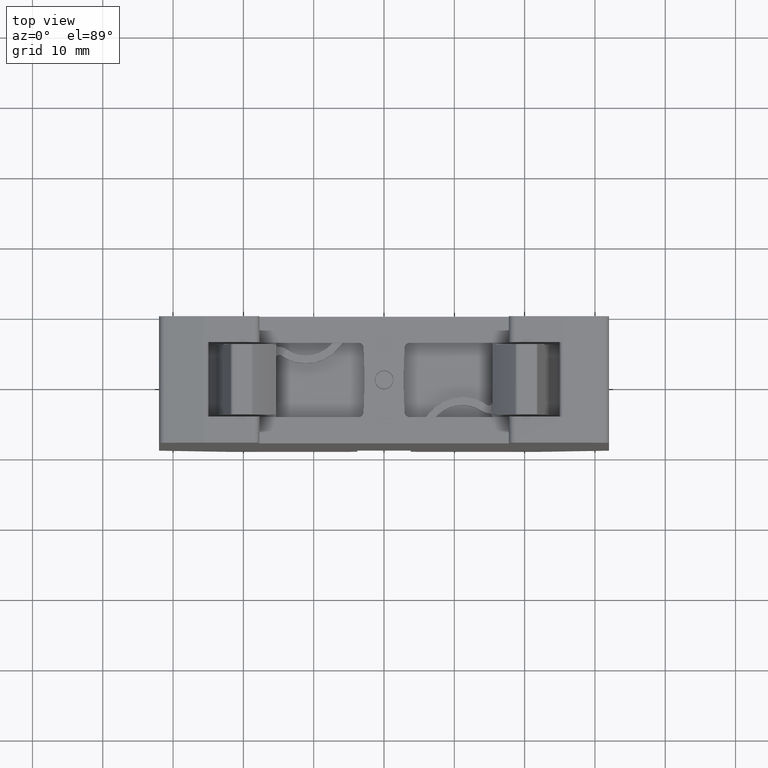
[diagram: clean part render]
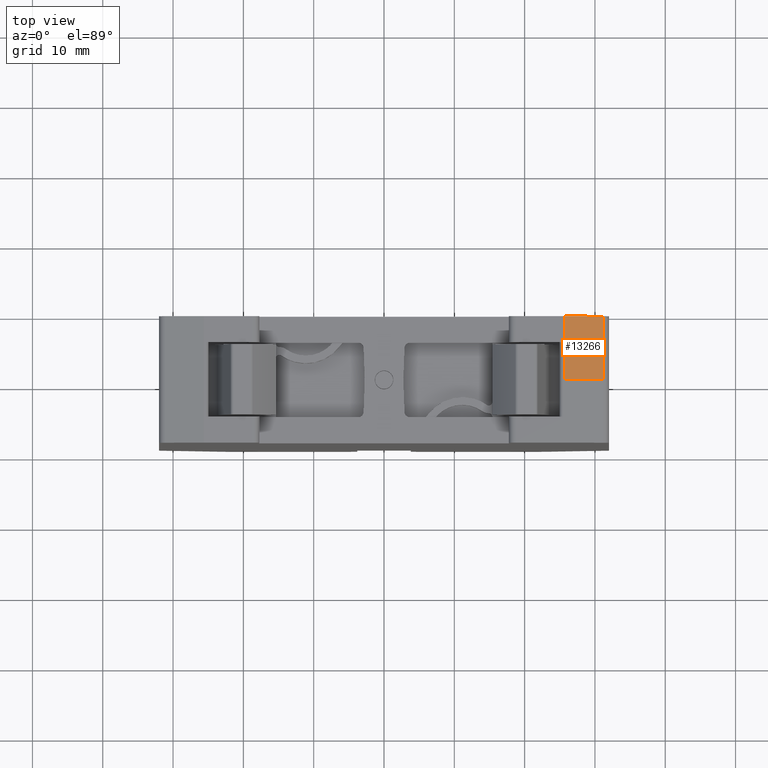
[diagram: same view with one face highlighted and labeled with its STEP entity id]
A machine part, top view. The second image highlights one B-rep face of the part: STEP entity #13266.
In plain terms, the highlighted planar face has unit normal (-0.1479, 0, -0.989).
Its self-contained STEP definition (entity closure, byte-faithful):
#579 = ORIENTED_EDGE ( 'NONE', *, *, #13400, .F. ) ;
#614 = ORIENTED_EDGE ( 'NONE', *, *, #13390, .F. ) ;
#617 = ORIENTED_EDGE ( 'NONE', *, *, #13102, .F. ) ;
#635 = ORIENTED_EDGE ( 'NONE', *, *, #13149, .T. ) ;
#4994 = LINE ( 'NONE', #4997, #15816 ) ;
#4997 = CARTESIAN_POINT ( 'NONE',  ( 125.6854684679427800, 50.07460764096342800, 74.98465249973236300 ) ) ;
#5064 = DIRECTION ( 'NONE',  ( 2.525220017650816600E-006, 0.9999999999967402700, -3.775706552954880800E-007 ) ) ;
#5495 = LINE ( 'NONE', #5514, #15795 ) ;
#5514 = CARTESIAN_POINT ( 'NONE',  ( 131.1474022710752900, 59.07460764096167300, 74.16798467889681500 ) ) ;
#5516 = DIRECTION ( 'NONE',  ( -0.9890058991842900500, -7.538687733026073400E-015, 0.1478760676332517800 ) ) ;
#6845 = CARTESIAN_POINT ( 'NONE',  ( 131.1473913206037000, 50.07460764096114000, 74.16798286047402700 ) ) ;
#6868 = CARTESIAN_POINT ( 'NONE',  ( 125.6854911949229500, 59.07460764096163100, 74.98464910159651700 ) ) ;
#6869 = CARTESIAN_POINT ( 'NONE',  ( 131.1474022710752900, 59.07460764096167300, 74.16798467889684300 ) ) ;
#6885 = CARTESIAN_POINT ( 'NONE',  ( 125.6854679646409800, 50.07460764096190100, 74.98464913378934700 ) ) ;
#7392 = B_SPLINE_CURVE_WITH_KNOTS ( 'NONE', 3,
 ( #8616, #8611, #8622, #8572 ),
 .UNSPECIFIED., .F., .F.,
 ( 4, 4 ),
 ( 0.0000000000000000000, 1.000000000000000000 ),
 .UNSPECIFIED. ) ;
#8018 = CARTESIAN_POINT ( 'NONE',  ( 131.1474022710755800, 71.07460764095840500, 74.16798467889677200 ) ) ;
#8020 = FACE_OUTER_BOUND ( 'NONE', #21499, .T. ) ;
#8023 = PLANE ( 'NONE',  #15943 ) ;
#8033 = DIRECTION ( 'NONE',  ( -0.9890058991842908300, 0.0000000000000000000, 0.1478760676332462300 ) ) ;
#8039 = DIRECTION ( 'NONE',  ( -0.1478760676332462300, 5.374094501731450600E-017, -0.9890058991842908300 ) ) ;
#8572 = CARTESIAN_POINT ( 'NONE',  ( 125.6854679646409800, 50.07460764096190100, 74.98464913378934700 ) ) ;
#8611 = CARTESIAN_POINT ( 'NONE',  ( 129.3267496972895000, 50.07460764096344300, 74.44020157626285100 ) ) ;
#8616 = CARTESIAN_POINT ( 'NONE',  ( 131.1473913206037000, 50.07460764096114000, 74.16798286047402700 ) ) ;
#8622 = CARTESIAN_POINT ( 'NONE',  ( 127.5061085793596200, 50.07460764096344300, 74.71242367218131600 ) ) ;
#8627 = CARTESIAN_POINT ( 'NONE',  ( 131.1474022710752900, 59.07460764096167300, 74.16798467889681500 ) ) ;
#8639 = LINE ( 'NONE', #8627, #16092 ) ;
#8654 = DIRECTION ( 'NONE',  ( -1.160561893499750200E-006, -0.9999999999993114400, 1.735271031802906600E-007 ) ) ;
#13102 = EDGE_CURVE ( 'NONE', #22287, #22295, #4994, .T. ) ;
#13149 = EDGE_CURVE ( 'NONE', #22301, #22295, #5495, .T. ) ;
#13266 = ADVANCED_FACE ( 'NONE', ( #8020 ), #8023, .F. ) ;
#13390 = EDGE_CURVE ( 'NONE', #22238, #22287, #7392, .T. ) ;
#13400 = EDGE_CURVE ( 'NONE', #22301, #22238, #8639, .T. ) ;
#15795 = VECTOR ( 'NONE', #5516, 1000.000000000000100 ) ;
#15816 = VECTOR ( 'NONE', #5064, 1000.000000000000200 ) ;
#15943 = AXIS2_PLACEMENT_3D ( 'NONE', #8018, #8039, #8033 ) ;
#16092 = VECTOR ( 'NONE', #8654, 1000.000000000000200 ) ;
#21499 = EDGE_LOOP ( 'NONE', ( #635, #617, #614, #579 ) ) ;
#22238 = VERTEX_POINT ( 'NONE', #6845 ) ;
#22287 = VERTEX_POINT ( 'NONE', #6885 ) ;
#22295 = VERTEX_POINT ( 'NONE', #6868 ) ;
#22301 = VERTEX_POINT ( 'NONE', #6869 ) ;